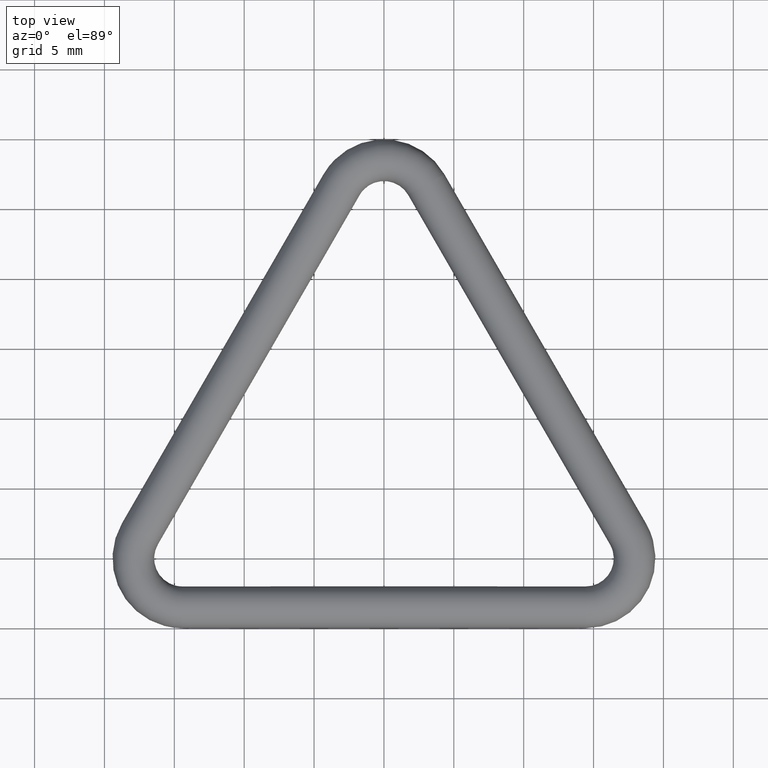
[diagram: clean part render]
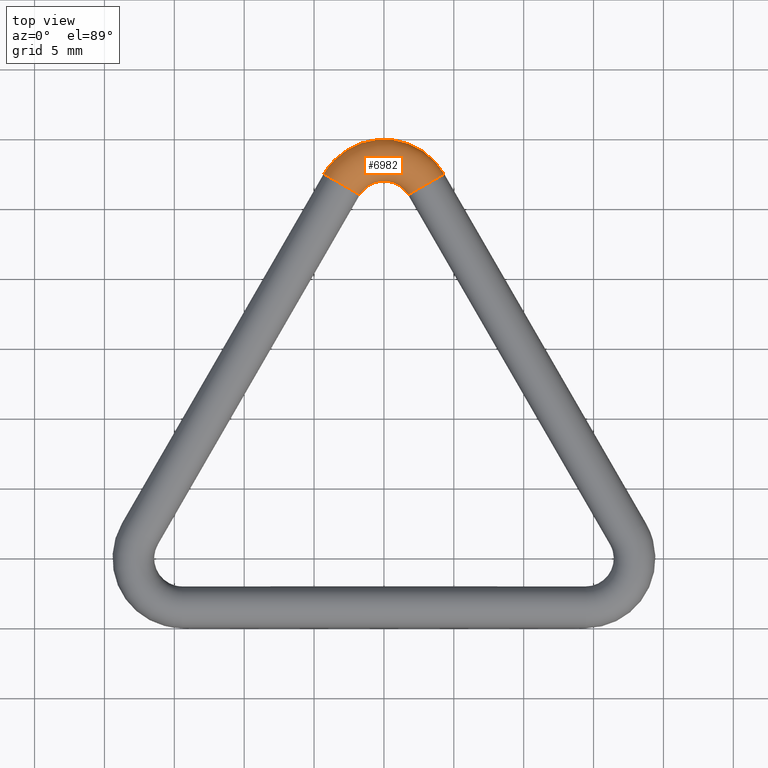
[diagram: same view with one face highlighted and labeled with its STEP entity id]
A machine part, top view. The second image highlights one B-rep face of the part: STEP entity #6982.
In plain terms, the highlighted toroidal blend (fillet) surface has major radius 3.5 mm and minor (blend) radius 1.5 mm.
Its self-contained STEP definition (entity closure, byte-faithful):
#172 = ORIENTED_EDGE ( 'NONE', *, *, #521, .T. ) ;
#443 = AXIS2_PLACEMENT_3D ( 'NONE', #10508, #4688, #5853 ) ;
#521 = EDGE_CURVE ( 'NONE', #11858, #11858, #9536, .T. ) ;
#1431 = TOROIDAL_SURFACE ( 'NONE', #9027, 3.500000000000001800, 1.500000000000000200 ) ;
#1867 = FACE_OUTER_BOUND ( 'NONE', #11267, .T. ) ;
#1905 = DIRECTION ( 'NONE',  ( -0.4999999999999955000, -0.8660254037844413700, 0.0000000000000000000 ) ) ;
#3530 = ORIENTED_EDGE ( 'NONE', *, *, #8587, .F. ) ;
#4005 = CARTESIAN_POINT ( 'NONE',  ( -3.031088913245542700, 31.75000000000000000, -1.500000000000000000 ) ) ;
#4245 = DIRECTION ( 'NONE',  ( 1.000000000000000000, 0.0000000000000000000, 0.0000000000000000000 ) ) ;
#4385 = EDGE_LOOP ( 'NONE', ( #3530 ) ) ;
#4666 = DIRECTION ( 'NONE',  ( 0.0000000000000000000, 0.0000000000000000000, -1.000000000000000000 ) ) ;
#4688 = DIRECTION ( 'NONE',  ( -0.4999999999999982800, 0.8660254037844397100, 0.0000000000000000000 ) ) ;
#5023 = VERTEX_POINT ( 'NONE', #4005 ) ;
#5853 = DIRECTION ( 'NONE',  ( 0.0000000000000000000, 0.0000000000000000000, -1.000000000000000000 ) ) ;
#5937 = AXIS2_PLACEMENT_3D ( 'NONE', #12428, #1905, #4666 ) ;
#6982 = ADVANCED_FACE ( 'NONE', ( #1867, #10379 ), #1431, .T. ) ;
#8587 = EDGE_CURVE ( 'NONE', #5023, #5023, #12332, .T. ) ;
#8783 = CARTESIAN_POINT ( 'NONE',  ( 3.031088913245546300, 31.74999999999998600, -1.500000000000000200 ) ) ;
#9027 = AXIS2_PLACEMENT_3D ( 'NONE', #10159, #10078, #4245 ) ;
#9536 = CIRCLE ( 'NONE', #443, 1.500000000000000200 ) ;
#10078 = DIRECTION ( 'NONE',  ( 0.0000000000000000000, 0.0000000000000000000, 1.000000000000000000 ) ) ;
#10159 = CARTESIAN_POINT ( 'NONE',  ( 0.0000000000000000000, 30.00000000000000400, 0.0000000000000000000 ) ) ;
#10379 = FACE_OUTER_BOUND ( 'NONE', #4385, .T. ) ;
#10508 = CARTESIAN_POINT ( 'NONE',  ( 3.031088913245546300, 31.74999999999998600, 0.0000000000000000000 ) ) ;
#11267 = EDGE_LOOP ( 'NONE', ( #172 ) ) ;
#11858 = VERTEX_POINT ( 'NONE', #8783 ) ;
#12332 = CIRCLE ( 'NONE', #5937, 1.500000000000000000 ) ;
#12428 = CARTESIAN_POINT ( 'NONE',  ( -3.031088913245542700, 31.75000000000000000, 0.0000000000000000000 ) ) ;